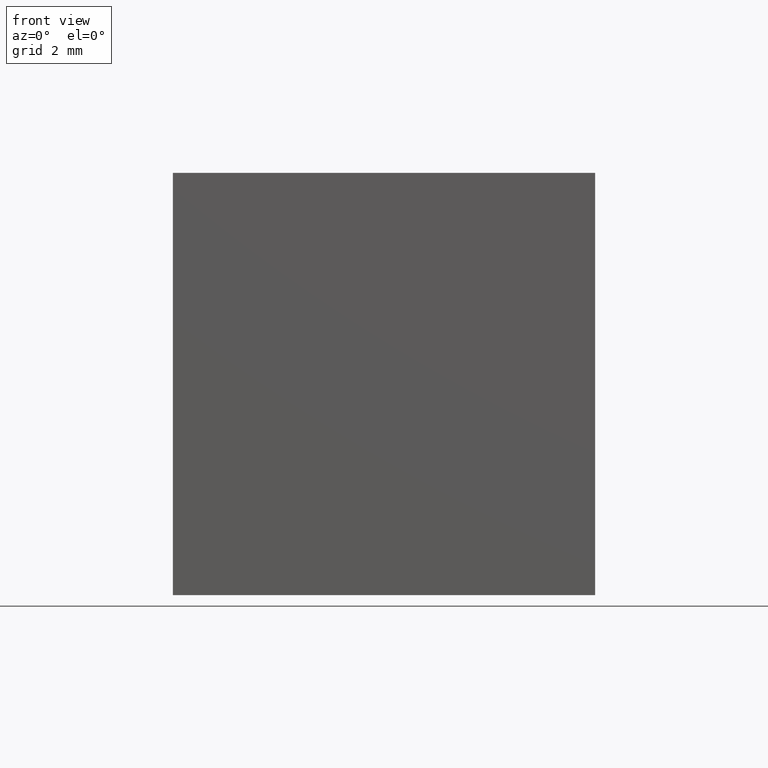
[diagram: clean part render]
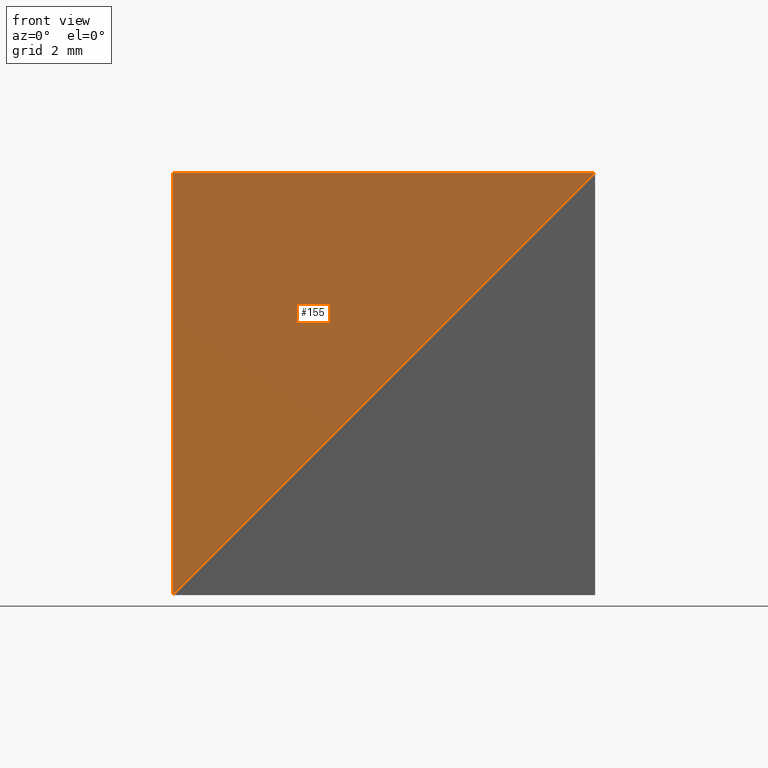
[diagram: same view with one face highlighted and labeled with its STEP entity id]
A machine part, front view. The second image highlights one B-rep face of the part: STEP entity #155.
In plain terms, the highlighted planar face has unit normal (0, 1, 0).
Its self-contained STEP definition (entity closure, byte-faithful):
#5 = DIRECTION ( 'NONE',  ( 0.0000000000000000000, 1.000000000000000000, 0.0000000000000000000 ) ) ;
#8 = ORIENTED_EDGE ( 'NONE', *, *, #216, .T. ) ;
#10 = ORIENTED_EDGE ( 'NONE', *, *, #204, .T. ) ;
#24 = LINE ( 'NONE', #191, #268 ) ;
#65 = VERTEX_POINT ( 'NONE', #72 ) ;
#67 = VERTEX_POINT ( 'NONE', #285 ) ;
#72 = CARTESIAN_POINT ( 'NONE',  ( -10.00000000000000000, -0.0000000000000000000, -9.999999999999996400 ) ) ;
#84 = EDGE_CURVE ( 'NONE', #125, #65, #24, .T. ) ;
#85 = DIRECTION ( 'NONE',  ( -1.000000000000000000, -0.0000000000000000000, -0.0000000000000000000 ) ) ;
#89 = CARTESIAN_POINT ( 'NONE',  ( 0.0000000000000000000, 0.0000000000000000000, 0.0000000000000000000 ) ) ;
#100 = VECTOR ( 'NONE', #187, 1000.000000000000000 ) ;
#125 = VERTEX_POINT ( 'NONE', #288 ) ;
#138 = DIRECTION ( 'NONE',  ( 0.0000000000000000000, -0.0000000000000000000, 1.000000000000000000 ) ) ;
#155 = ADVANCED_FACE ( 'NONE', ( #158 ), #161, .F. ) ;
#158 = FACE_OUTER_BOUND ( 'NONE', #276, .T. ) ;
#161 = PLANE ( 'NONE',  #247 ) ;
#169 = LINE ( 'NONE', #211, #100 ) ;
#187 = DIRECTION ( 'NONE',  ( 0.7071067811865476800, 0.0000000000000000000, 0.7071067811865474600 ) ) ;
#191 = CARTESIAN_POINT ( 'NONE',  ( -10.00000000000000000, -0.0000000000000000000, -9.999999999999996400 ) ) ;
#204 = EDGE_CURVE ( 'NONE', #65, #67, #169, .T. ) ;
#211 = CARTESIAN_POINT ( 'NONE',  ( 0.0000000000000000000, 0.0000000000000000000, 0.0000000000000000000 ) ) ;
#216 = EDGE_CURVE ( 'NONE', #67, #125, #226, .T. ) ;
#226 = LINE ( 'NONE', #255, #235 ) ;
#235 = VECTOR ( 'NONE', #85, 1000.000000000000000 ) ;
#240 = ORIENTED_EDGE ( 'NONE', *, *, #84, .T. ) ;
#247 = AXIS2_PLACEMENT_3D ( 'NONE', #89, #5, #138 ) ;
#255 = CARTESIAN_POINT ( 'NONE',  ( -10.00000000000000000, 0.0000000000000000000, 0.0000000000000000000 ) ) ;
#268 = VECTOR ( 'NONE', #269, 1000.000000000000000 ) ;
#269 = DIRECTION ( 'NONE',  ( -0.0000000000000000000, -0.0000000000000000000, -1.000000000000000000 ) ) ;
#276 = EDGE_LOOP ( 'NONE', ( #10, #8, #240 ) ) ;
#285 = CARTESIAN_POINT ( 'NONE',  ( 0.0000000000000000000, 0.0000000000000000000, 0.0000000000000000000 ) ) ;
#288 = CARTESIAN_POINT ( 'NONE',  ( -10.00000000000000000, 0.0000000000000000000, 0.0000000000000000000 ) ) ;